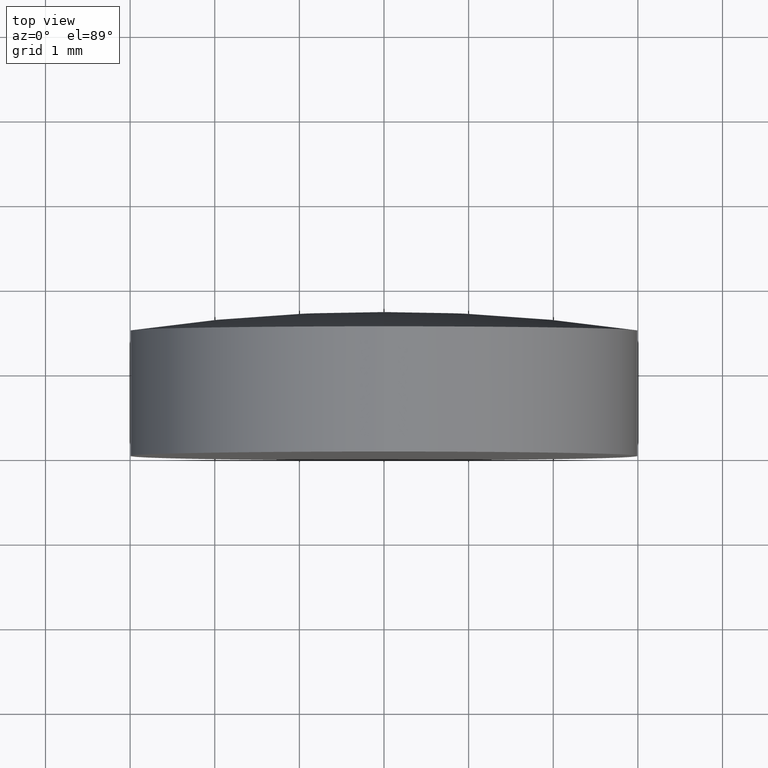
[diagram: clean part render]
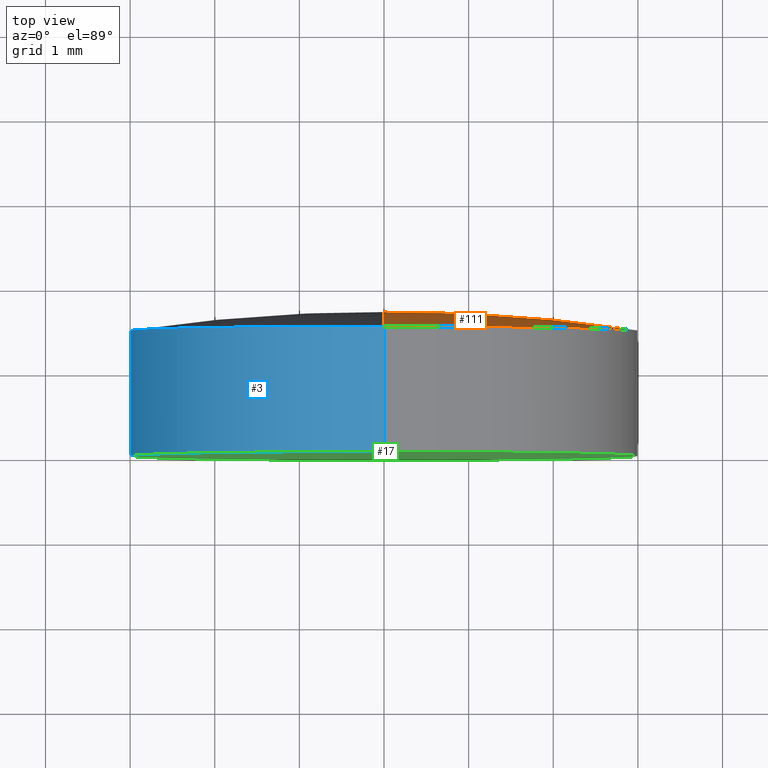
[diagram: same view with three faces highlighted in distinct colors, each labeled with its STEP entity id]
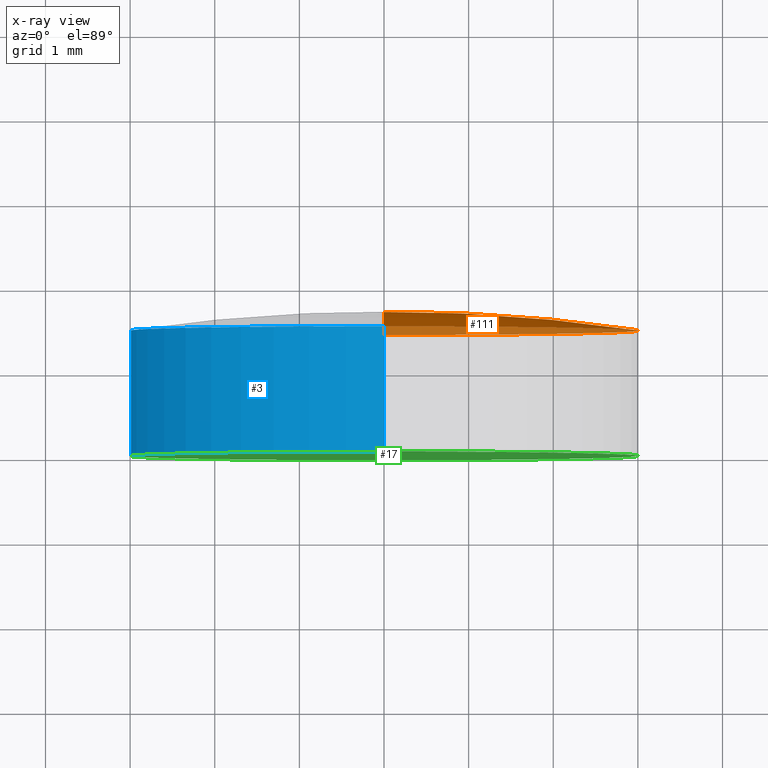
[diagram: x-ray of the same camera — body ghosted, the three highlighted faces saturated]
A machine part, top view with three faces highlighted in distinct colors.
The next image is the same camera in x-ray (body ghosted, the three faces saturated) — at least one of them is partly hidden behind the body in this view.
Their STEP definitions:

[orange] entity #111 — the highlighted toroidal blend (fillet) surface has major radius 0.0063 mm and minor (blend) radius 20.65 mm.
#4 = VERTEX_POINT ( 'NONE', #148 ) ;
#14 = AXIS2_PLACEMENT_3D ( 'NONE', #116, #115, #101 ) ;
#18 = DIRECTION ( 'NONE',  ( 1.000000000000000000, 0.000000000000000000, -1.224646799147353207E-16 ) ) ;
#24 = DIRECTION ( 'NONE',  ( -0.000000000000000000, -1.000000000000000000, -0.000000000000000000 ) ) ;
#26 = AXIS2_PLACEMENT_3D ( 'NONE', #164, #18, #84 ) ;
#31 = CIRCLE ( 'NONE', #26, 20.64999999999999858 ) ;
#37 = CIRCLE ( 'NONE', #152, 20.64999999999999858 ) ;
#40 = VERTEX_POINT ( 'NONE', #96 ) ;
#58 = EDGE_CURVE ( 'NONE', #40, #109, #31, .T. ) ;
#68 = ORIENTED_EDGE ( 'NONE', *, *, #58, .T. ) ;
#80 = TOROIDAL_SURFACE ( 'NONE', #14, -0.006266596937427003355, 20.64999999999999858 ) ;
#84 = DIRECTION ( 'NONE',  ( -1.260089691992838106E-16, 0.000000000000000000, -1.000000000000000000 ) ) ;
#85 = ORIENTED_EDGE ( 'NONE', *, *, #97, .F. ) ;
#88 = CARTESIAN_POINT ( 'NONE',  ( -2.999999999999999556, 1.479999999999999316, 3.000000000000005773 ) ) ;
#90 = DIRECTION ( 'NONE',  ( -1.000000000000000000, 0.000000000000000000, 0.000000000000000000 ) ) ;
#94 = EDGE_CURVE ( 'NONE', #40, #4, #37, .T. ) ;
#95 = EDGE_LOOP ( 'NONE', ( #98, #68, #85 ) ) ;
#96 = CARTESIAN_POINT ( 'NONE',  ( -3.000000000000000000, 1.699999999999999512, 0.000000000000000000 ) ) ;
#97 = EDGE_CURVE ( 'NONE', #4, #109, #196, .T. ) ;
#98 = ORIENTED_EDGE ( 'NONE', *, *, #94, .F. ) ;
#101 = DIRECTION ( 'NONE',  ( 0.000000000000000000, 0.000000000000000000, -1.000000000000000000 ) ) ;
#109 = VERTEX_POINT ( 'NONE', #88 ) ;
#111 = ADVANCED_FACE ( 'NONE', ( #200 ), #80, .T. ) ;
#114 = CARTESIAN_POINT ( 'NONE',  ( -3.000000000000000000, 1.479999999999999982, 0.000000000000000000 ) ) ;
#115 = DIRECTION ( 'NONE',  ( -0.000000000000000000, -1.000000000000000000, -0.000000000000000000 ) ) ;
#116 = CARTESIAN_POINT ( 'NONE',  ( -3.000000000000000000, -18.94999904914677558, 0.000000000000000000 ) ) ;
#130 = CARTESIAN_POINT ( 'NONE',  ( -3.000000000000000000, -18.94999904914677558, 0.006266596937427003355 ) ) ;
#131 = DIRECTION ( 'NONE',  ( 0.000000000000000000, 0.000000000000000000, 1.000000000000000000 ) ) ;
#148 = CARTESIAN_POINT ( 'NONE',  ( -3.000000000000000000, 1.479999999999999316, -3.000000000000005773 ) ) ;
#152 = AXIS2_PLACEMENT_3D ( 'NONE', #130, #90, #131 ) ;
#153 = DIRECTION ( 'NONE',  ( 0.000000000000000000, 0.000000000000000000, -1.000000000000000000 ) ) ;
#164 = CARTESIAN_POINT ( 'NONE',  ( -3.000000000000000000, -18.94999904914677558, -0.006266596937427003355 ) ) ;
#173 = AXIS2_PLACEMENT_3D ( 'NONE', #114, #24, #153 ) ;
#196 = CIRCLE ( 'NONE', #173, 3.000000000000000000 ) ;
#200 = FACE_OUTER_BOUND ( 'NONE', #95, .T. ) ;

[blue] entity #3 — the highlighted cylindrical surface (partial cylindrical patch) has radius 3 mm, axis along (-0, -1, -0).
#2 = EDGE_CURVE ( 'NONE', #4, #166, #198, .T. ) ;
#3 = ADVANCED_FACE ( 'NONE', ( #87 ), #113, .T. ) ;
#4 = VERTEX_POINT ( 'NONE', #148 ) ;
#6 = CARTESIAN_POINT ( 'NONE',  ( -2.999999999999999556, -3.673940397442060361E-16, 3.000000000000000000 ) ) ;
#21 = DIRECTION ( 'NONE',  ( 0.000000000000000000, 0.000000000000000000, -1.000000000000000000 ) ) ;
#22 = DIRECTION ( 'NONE',  ( -0.000000000000000000, -1.000000000000000000, -0.000000000000000000 ) ) ;
#41 = DIRECTION ( 'NONE',  ( -0.000000000000000000, -1.000000000000000000, -0.000000000000000000 ) ) ;
#45 = CARTESIAN_POINT ( 'NONE',  ( -2.999999999999999556, 0.000000000000000000, 3.000000000000000000 ) ) ;
#49 = AXIS2_PLACEMENT_3D ( 'NONE', #195, #100, #21 ) ;
#52 = VECTOR ( 'NONE', #64, 1000.000000000000000 ) ;
#54 = CARTESIAN_POINT ( 'NONE',  ( -3.000000000000000000, -3.673940397442060361E-16, -3.000000000000000000 ) ) ;
#59 = CARTESIAN_POINT ( 'NONE',  ( -3.000000000000000000, 0.000000000000000000, 0.000000000000000000 ) ) ;
#60 = CIRCLE ( 'NONE', #112, 3.000000000000000000 ) ;
#63 = EDGE_CURVE ( 'NONE', #109, #4, #108, .T. ) ;
#64 = DIRECTION ( 'NONE',  ( -0.000000000000000000, -1.000000000000000000, -0.000000000000000000 ) ) ;
#67 = CARTESIAN_POINT ( 'NONE',  ( -3.000000000000000000, 1.479999999999999982, 0.000000000000000000 ) ) ;
#70 = DIRECTION ( 'NONE',  ( 0.000000000000000000, 0.000000000000000000, -1.000000000000000000 ) ) ;
#73 = DIRECTION ( 'NONE',  ( 0.000000000000000000, 0.000000000000000000, -1.000000000000000000 ) ) ;
#86 = ORIENTED_EDGE ( 'NONE', *, *, #192, .F. ) ;
#87 = FACE_OUTER_BOUND ( 'NONE', #142, .T. ) ;
#88 = CARTESIAN_POINT ( 'NONE',  ( -2.999999999999999556, 1.479999999999999316, 3.000000000000005773 ) ) ;
#100 = DIRECTION ( 'NONE',  ( -0.000000000000000000, -1.000000000000000000, -0.000000000000000000 ) ) ;
#108 = CIRCLE ( 'NONE', #163, 3.000000000000000000 ) ;
#109 = VERTEX_POINT ( 'NONE', #88 ) ;
#112 = AXIS2_PLACEMENT_3D ( 'NONE', #59, #22, #73 ) ;
#113 = CYLINDRICAL_SURFACE ( 'NONE', #49, 3.000000000000000000 ) ;
#127 = DIRECTION ( 'NONE',  ( -0.000000000000000000, -1.000000000000000000, -0.000000000000000000 ) ) ;
#142 = EDGE_LOOP ( 'NONE', ( #182, #180, #162, #86 ) ) ;
#146 = VERTEX_POINT ( 'NONE', #45 ) ;
#148 = CARTESIAN_POINT ( 'NONE',  ( -3.000000000000000000, 1.479999999999999316, -3.000000000000005773 ) ) ;
#149 = CARTESIAN_POINT ( 'NONE',  ( -3.000000000000000000, 0.000000000000000000, -3.000000000000000000 ) ) ;
#151 = EDGE_CURVE ( 'NONE', #109, #146, #199, .T. ) ;
#157 = VECTOR ( 'NONE', #41, 1000.000000000000000 ) ;
#162 = ORIENTED_EDGE ( 'NONE', *, *, #2, .T. ) ;
#163 = AXIS2_PLACEMENT_3D ( 'NONE', #67, #127, #70 ) ;
#166 = VERTEX_POINT ( 'NONE', #149 ) ;
#180 = ORIENTED_EDGE ( 'NONE', *, *, #63, .T. ) ;
#182 = ORIENTED_EDGE ( 'NONE', *, *, #151, .F. ) ;
#192 = EDGE_CURVE ( 'NONE', #146, #166, #60, .T. ) ;
#195 = CARTESIAN_POINT ( 'NONE',  ( -3.000000000000000000, -3.673940397442060361E-16, 0.000000000000000000 ) ) ;
#198 = LINE ( 'NONE', #54, #52 ) ;
#199 = LINE ( 'NONE', #6, #157 ) ;

[green] entity #17 — the highlighted planar face has unit normal (0, -1, -0).
#15 = AXIS2_PLACEMENT_3D ( 'NONE', #171, #55, #103 ) ;
#17 = ADVANCED_FACE ( 'NONE', ( #35 ), #51, .T. ) ;
#22 = DIRECTION ( 'NONE',  ( -0.000000000000000000, -1.000000000000000000, -0.000000000000000000 ) ) ;
#34 = ORIENTED_EDGE ( 'NONE', *, *, #192, .T. ) ;
#35 = FACE_OUTER_BOUND ( 'NONE', #129, .T. ) ;
#36 = DIRECTION ( 'NONE',  ( 0.000000000000000000, 0.000000000000000000, -1.000000000000000000 ) ) ;
#45 = CARTESIAN_POINT ( 'NONE',  ( -2.999999999999999556, 0.000000000000000000, 3.000000000000000000 ) ) ;
#51 = PLANE ( 'NONE',  #83 ) ;
#55 = DIRECTION ( 'NONE',  ( -0.000000000000000000, -1.000000000000000000, -0.000000000000000000 ) ) ;
#59 = CARTESIAN_POINT ( 'NONE',  ( -3.000000000000000000, 0.000000000000000000, 0.000000000000000000 ) ) ;
#60 = CIRCLE ( 'NONE', #112, 3.000000000000000000 ) ;
#72 = EDGE_CURVE ( 'NONE', #166, #146, #122, .T. ) ;
#73 = DIRECTION ( 'NONE',  ( 0.000000000000000000, 0.000000000000000000, -1.000000000000000000 ) ) ;
#83 = AXIS2_PLACEMENT_3D ( 'NONE', #110, #178, #36 ) ;
#103 = DIRECTION ( 'NONE',  ( 0.000000000000000000, 0.000000000000000000, -1.000000000000000000 ) ) ;
#110 = CARTESIAN_POINT ( 'NONE',  ( 0.000000000000000000, -1.836970198721030181E-16, 0.000000000000000000 ) ) ;
#112 = AXIS2_PLACEMENT_3D ( 'NONE', #59, #22, #73 ) ;
#122 = CIRCLE ( 'NONE', #15, 3.000000000000000000 ) ;
#129 = EDGE_LOOP ( 'NONE', ( #167, #34 ) ) ;
#146 = VERTEX_POINT ( 'NONE', #45 ) ;
#149 = CARTESIAN_POINT ( 'NONE',  ( -3.000000000000000000, 0.000000000000000000, -3.000000000000000000 ) ) ;
#166 = VERTEX_POINT ( 'NONE', #149 ) ;
#167 = ORIENTED_EDGE ( 'NONE', *, *, #72, .T. ) ;
#171 = CARTESIAN_POINT ( 'NONE',  ( -3.000000000000000000, 0.000000000000000000, 0.000000000000000000 ) ) ;
#178 = DIRECTION ( 'NONE',  ( 0.000000000000000000, -1.000000000000000000, -0.000000000000000000 ) ) ;
#192 = EDGE_CURVE ( 'NONE', #146, #166, #60, .T. ) ;